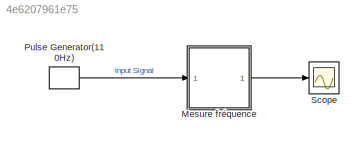
MODEL slx_4e6207961e75
KIND model
CONFIG AbsTol = auto
CONFIG EnableMultiTasking = off
CONFIG FixedStep = auto
CONFIG MaxStep = 0.0001
CONFIG MinStep = 0.0001
CONFIG RelTol = 1e-3
CONFIG SampleTimeConstraint = Unconstrained
CONFIG Solver = VariableStepAuto
CONFIG SolverName = VariableStepAuto
CONFIG StartTime = 0.0
CONFIG StopTime = 3
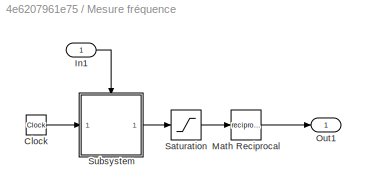
BLOCK [SubSystem] Mesure fréquence
  Ports = [1, 1]
  RequestExecContextInheritance = off
BLOCK [Clock] Mesure fréquence/Clock
BLOCK [Inport] Mesure fréquence/In1
  IconDisplay = Port number
BLOCK [Math] Mesure fréquence/Math Reciprocal
  Operator = reciprocal
  Ports = [1, 1]
BLOCK [Outport] Mesure fréquence/Out1
  IconDisplay = Port number
BLOCK [Saturate] Mesure fréquence/Saturation
  InputPortMap = u0
  LowerLimit = 0.003
  Ports = [1, 1]
  UpperLimit = 1
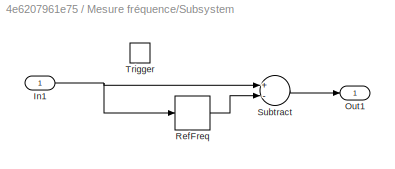
BLOCK [SubSystem] Mesure fréquence/Subsystem
  Ports = [1, 1, 0, 1]
  RequestExecContextInheritance = off
BLOCK [Inport] Mesure fréquence/Subsystem/In1
  IconDisplay = Port number
BLOCK [Outport] Mesure fréquence/Subsystem/Out1
  IconDisplay = Port number
BLOCK [Delay] Mesure fréquence/Subsystem/RefFreq
  DelayLength = 1
  InitialCondition = 0
  InputPortMap = u0
  Ports = [1, 1]
BLOCK [Sum] Mesure fréquence/Subsystem/Subtract
  InputSameDT = off
  Inputs = +-
  OutDataTypeStr = Inherit: Inherit via internal rule
  Ports = [2, 1]
  SaturateOnIntegerOverflow = off
BLOCK [TriggerPort] Mesure fréquence/Subsystem/Trigger
  PortDimensions = 1
  Ports = []
  StatesWhenEnabling = held
  VariantControl = Variant
BLOCK [DiscretePulseGenerator] Pulse Generator(110Hz)
  Amplitude = 5
  Period = 1/110
  Ports = [0, 1]
  PulseType = Time based
  PulseWidth = 50
BLOCK [Scope] Scope
  Floating = off
  NumInputPorts = 1
  Ports = [1]
  ScopeSpecificationString = Simulink.scopes.TimeScopeBlockCfg('CurrentConfiguration', extmgr.ConfigurationSet(extmgr.Configuration('Core','General UI',true),extmgr.Configuration('Core','Source UI',true),extmgr.Configuration('Sources','WiredSimulink',true),extmgr.Configuration('Visuals','Time Domain',true,'SerializedDisplays',{struct('MinYLimReal','-1.25','MaxYLimReal','1111.25','YLabelReal','','MinYLimMag','0.00000','MaxYLim...<+1402ch>
LINE Mesure fréquence/Clock:1 -> Mesure fréquence/Subsystem:1
LINE Mesure fréquence/In1:1 -> Mesure fréquence/Subsystem:trigger
LINE Mesure fréquence/Math Reciprocal:1 -> Mesure fréquence/Out1:1
LINE Mesure fréquence/Saturation:1 -> Mesure fréquence/Math Reciprocal:1
NET Mesure fréquence/Subsystem/In1:1 -> Mesure fréquence/Subsystem/RefFreq:1, Mesure fréquence/Subsystem/Subtract:1
LINE Mesure fréquence/Subsystem/RefFreq:1 -> Mesure fréquence/Subsystem/Subtract:2
LINE Mesure fréquence/Subsystem/Subtract:1 -> Mesure fréquence/Subsystem/Out1:1
LINE Mesure fréquence/Subsystem:1 -> Mesure fréquence/Saturation:1
LINE Mesure fréquence:1 -> Scope:1
LINE Pulse Generator(110Hz):1 -> Mesure fréquence:1
note: NET lines group one-source signal fan-out (src -> all destinations, sorted); 1:1 wires keep LINE
